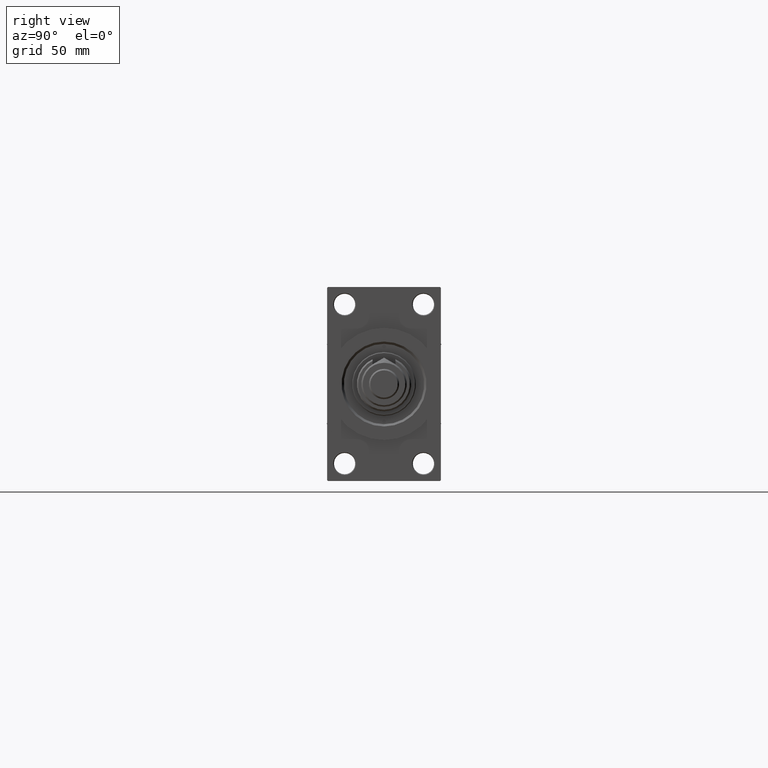
[diagram: clean part render]
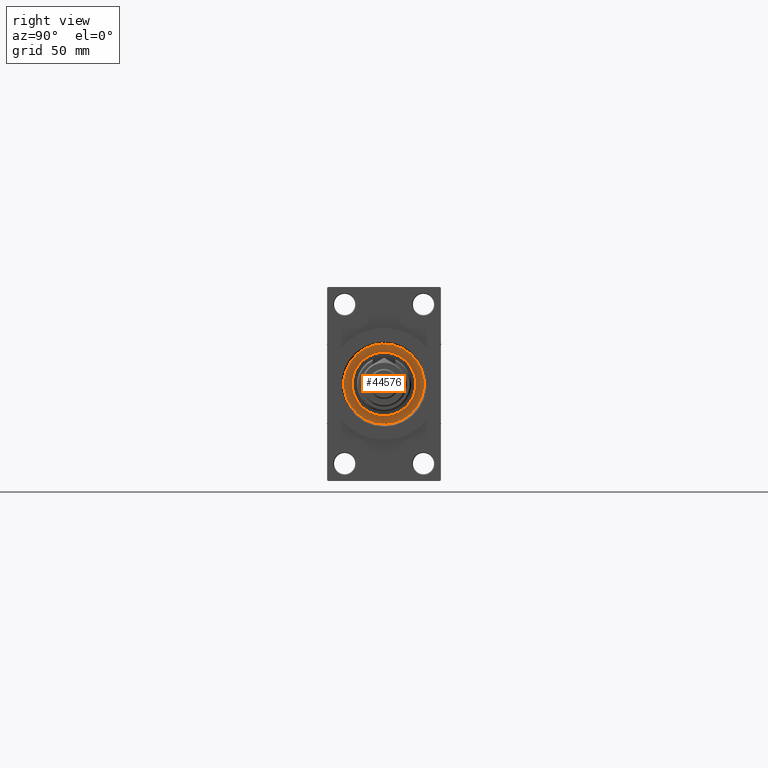
[diagram: same view with one face highlighted and labeled with its STEP entity id]
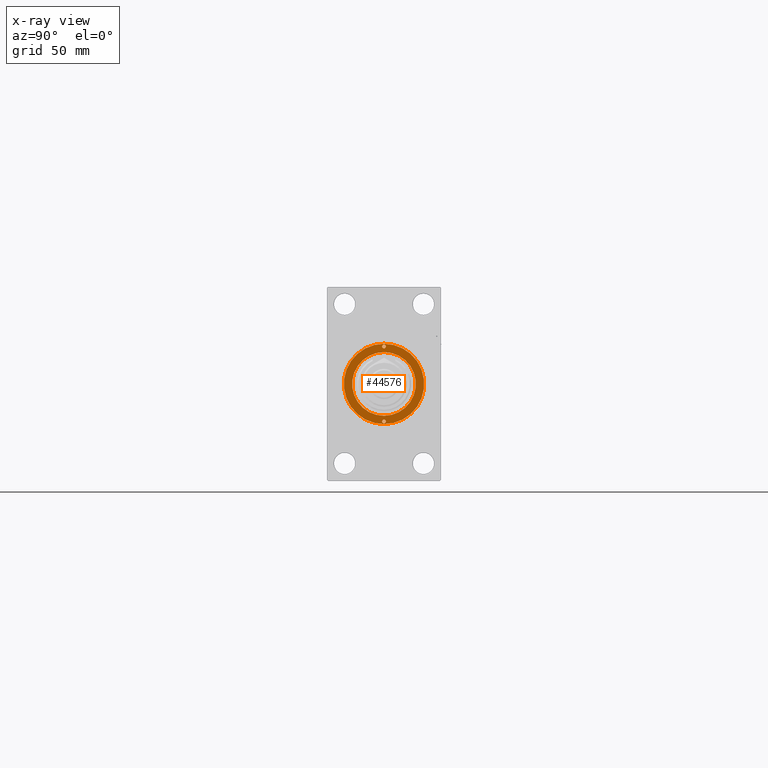
[diagram: x-ray of the same camera — body ghosted, the highlighted face saturated]
A machine part, right view. The second image highlights one B-rep face of the part: STEP entity #44576.
The next image is the same camera in x-ray: the body ghosted, the highlighted face saturated — about 0% of this face is hidden behind the body in this view.
In plain terms, the highlighted planar face has unit normal (1, -0, -0).
Its self-contained STEP definition (entity closure, byte-faithful):
#467 = DIRECTION ( 'NONE',  ( 0.000000000000000000, 0.000000000000000000, 1.000000000000000000 ) ) ;
#829 = AXIS2_PLACEMENT_3D ( 'NONE', #39328, #19762, #42128 ) ;
#956 = DIRECTION ( 'NONE',  ( 1.000000000000000000, 0.000000000000000000, 0.000000000000000000 ) ) ;
#2066 = CIRCLE ( 'NONE', #14196, 26.50000000000000355 ) ;
#2708 = CARTESIAN_POINT ( 'NONE',  ( 26.50000000000000355, 3.245314017740486554E-15, 43.25999999999999801 ) ) ;
#3404 = DIRECTION ( 'NONE',  ( 1.000000000000000000, 0.000000000000000000, 0.000000000000000000 ) ) ;
#4004 = EDGE_CURVE ( 'NONE', #41522, #43818, #18887, .T. ) ;
#4759 = CARTESIAN_POINT ( 'NONE',  ( 0.000000000000000000, 0.000000000000000000, 43.25999999999999801 ) ) ;
#4940 = CIRCLE ( 'NONE', #15500, 1.249999999999997558 ) ;
#5890 = AXIS2_PLACEMENT_3D ( 'NONE', #25679, #37361, #41422 ) ;
#7315 = CIRCLE ( 'NONE', #43871, 26.50000000000000355 ) ;
#8345 = ORIENTED_EDGE ( 'NONE', *, *, #31849, .T. ) ;
#9134 = CARTESIAN_POINT ( 'NONE',  ( 23.50000000000000355, 1.530808498934188612E-16, 43.25999999999999801 ) ) ;
#9213 = DIRECTION ( 'NONE',  ( 0.000000000000000000, 0.000000000000000000, 1.000000000000000000 ) ) ;
#9689 = CIRCLE ( 'NONE', #47061, 1.249999999999997558 ) ;
#10456 = VERTEX_POINT ( 'NONE', #23473 ) ;
#11386 = CARTESIAN_POINT ( 'NONE',  ( -21.00000000000000000, 0.000000000000000000, 43.25999999999999801 ) ) ;
#12216 = DIRECTION ( 'NONE',  ( -0.000000000000000000, -0.000000000000000000, 1.000000000000000000 ) ) ;
#12526 = CARTESIAN_POINT ( 'NONE',  ( -26.50000000000000355, 0.000000000000000000, 43.25999999999999801 ) ) ;
#13264 = ORIENTED_EDGE ( 'NONE', *, *, #4004, .F. ) ;
#13473 = EDGE_LOOP ( 'NONE', ( #22095, #8345 ) ) ;
#13589 = VERTEX_POINT ( 'NONE', #9134 ) ;
#13646 = VERTEX_POINT ( 'NONE', #44465 ) ;
#14196 = AXIS2_PLACEMENT_3D ( 'NONE', #4759, #467, #956 ) ;
#14434 = EDGE_CURVE ( 'NONE', #43818, #41522, #44668, .T. ) ;
#14843 = DIRECTION ( 'NONE',  ( 0.000000000000000000, 0.000000000000000000, 1.000000000000000000 ) ) ;
#15500 = AXIS2_PLACEMENT_3D ( 'NONE', #45732, #41395, #37098 ) ;
#16591 = FACE_OUTER_BOUND ( 'NONE', #13473, .T. ) ;
#17216 = CARTESIAN_POINT ( 'NONE',  ( 0.000000000000000000, 0.000000000000000000, 43.25999999999999801 ) ) ;
#18404 = EDGE_CURVE ( 'NONE', #47394, #41870, #7315, .T. ) ;
#18887 = CIRCLE ( 'NONE', #37568, 21.00000000000000000 ) ;
#19479 = DIRECTION ( 'NONE',  ( -0.000000000000000000, -0.000000000000000000, 1.000000000000000000 ) ) ;
#19762 = DIRECTION ( 'NONE',  ( 0.000000000000000000, 0.000000000000000000, 1.000000000000000000 ) ) ;
#20297 = DIRECTION ( 'NONE',  ( 1.000000000000000000, 0.000000000000000000, 0.000000000000000000 ) ) ;
#20856 = CARTESIAN_POINT ( 'NONE',  ( 24.75000000000000000, 0.000000000000000000, 43.25999999999999801 ) ) ;
#21154 = FACE_BOUND ( 'NONE', #21915, .T. ) ;
#21915 = EDGE_LOOP ( 'NONE', ( #47779, #13264 ) ) ;
#22095 = ORIENTED_EDGE ( 'NONE', *, *, #18404, .T. ) ;
#22600 = ORIENTED_EDGE ( 'NONE', *, *, #23695, .F. ) ;
#22981 = AXIS2_PLACEMENT_3D ( 'NONE', #20856, #12216, #35868 ) ;
#23473 = CARTESIAN_POINT ( 'NONE',  ( -23.50000000000000355, 0.000000000000000000, 43.25999999999999801 ) ) ;
#23534 = CARTESIAN_POINT ( 'NONE',  ( -24.75000000000000000, 0.000000000000000000, 43.25999999999999801 ) ) ;
#23695 = EDGE_CURVE ( 'NONE', #43216, #10456, #38355, .T. ) ;
#25679 = CARTESIAN_POINT ( 'NONE',  ( -24.75000000000000000, 0.000000000000000000, 43.25999999999999801 ) ) ;
#27058 = CARTESIAN_POINT ( 'NONE',  ( 0.000000000000000000, 0.000000000000000000, 43.25999999999999801 ) ) ;
#30321 = ORIENTED_EDGE ( 'NONE', *, *, #37171, .F. ) ;
#30669 = CARTESIAN_POINT ( 'NONE',  ( -26.00000000000000000, 1.530808498934188612E-16, 43.25999999999999801 ) ) ;
#31849 = EDGE_CURVE ( 'NONE', #41870, #47394, #2066, .T. ) ;
#32600 = AXIS2_PLACEMENT_3D ( 'NONE', #43793, #9213, #44545 ) ;
#33104 = FACE_BOUND ( 'NONE', #47080, .T. ) ;
#34980 = DIRECTION ( 'NONE',  ( 1.000000000000000000, 0.000000000000000000, 0.000000000000000000 ) ) ;
#35306 = CARTESIAN_POINT ( 'NONE',  ( 21.00000000000000000, 2.571758278209441661E-15, 43.25999999999999801 ) ) ;
#35868 = DIRECTION ( 'NONE',  ( 1.000000000000000000, 0.000000000000000000, 0.000000000000000000 ) ) ;
#36663 = PLANE ( 'NONE',  #32600 ) ;
#37098 = DIRECTION ( 'NONE',  ( 1.000000000000000000, 0.000000000000000000, 0.000000000000000000 ) ) ;
#37171 = EDGE_CURVE ( 'NONE', #10456, #43216, #9689, .T. ) ;
#37361 = DIRECTION ( 'NONE',  ( -0.000000000000000000, -0.000000000000000000, 1.000000000000000000 ) ) ;
#37568 = AXIS2_PLACEMENT_3D ( 'NONE', #27058, #14843, #3404 ) ;
#38355 = CIRCLE ( 'NONE', #5890, 1.249999999999997558 ) ;
#38694 = ORIENTED_EDGE ( 'NONE', *, *, #40491, .F. ) ;
#39328 = CARTESIAN_POINT ( 'NONE',  ( 0.000000000000000000, 0.000000000000000000, 43.25999999999999801 ) ) ;
#40112 = DIRECTION ( 'NONE',  ( 0.000000000000000000, 0.000000000000000000, 1.000000000000000000 ) ) ;
#40470 = FACE_BOUND ( 'NONE', #46837, .T. ) ;
#40491 = EDGE_CURVE ( 'NONE', #13646, #13589, #4940, .T. ) ;
#41395 = DIRECTION ( 'NONE',  ( -0.000000000000000000, -0.000000000000000000, 1.000000000000000000 ) ) ;
#41422 = DIRECTION ( 'NONE',  ( 1.000000000000000000, 0.000000000000000000, 0.000000000000000000 ) ) ;
#41522 = VERTEX_POINT ( 'NONE', #35306 ) ;
#41870 = VERTEX_POINT ( 'NONE', #2708 ) ;
#42128 = DIRECTION ( 'NONE',  ( 1.000000000000000000, 0.000000000000000000, 0.000000000000000000 ) ) ;
#43216 = VERTEX_POINT ( 'NONE', #30669 ) ;
#43793 = CARTESIAN_POINT ( 'NONE',  ( 0.000000000000000000, 0.000000000000000000, 43.25999999999999801 ) ) ;
#43818 = VERTEX_POINT ( 'NONE', #11386 ) ;
#43871 = AXIS2_PLACEMENT_3D ( 'NONE', #17216, #40112, #20297 ) ;
#44465 = CARTESIAN_POINT ( 'NONE',  ( 26.00000000000000000, 0.000000000000000000, 43.25999999999999801 ) ) ;
#44545 = DIRECTION ( 'NONE',  ( 1.000000000000000000, 0.000000000000000000, -0.000000000000000000 ) ) ;
#44576 = ADVANCED_FACE ( 'NONE', ( #33104, #40470, #21154, #16591 ), #36663, .T. ) ;
#44668 = CIRCLE ( 'NONE', #829, 21.00000000000000000 ) ;
#44905 = CIRCLE ( 'NONE', #22981, 1.249999999999997558 ) ;
#45732 = CARTESIAN_POINT ( 'NONE',  ( 24.75000000000000000, 0.000000000000000000, 43.25999999999999801 ) ) ;
#46837 = EDGE_LOOP ( 'NONE', ( #38694, #49524 ) ) ;
#47061 = AXIS2_PLACEMENT_3D ( 'NONE', #23534, #19479, #34980 ) ;
#47080 = EDGE_LOOP ( 'NONE', ( #30321, #22600 ) ) ;
#47394 = VERTEX_POINT ( 'NONE', #12526 ) ;
#47642 = EDGE_CURVE ( 'NONE', #13589, #13646, #44905, .T. ) ;
#47779 = ORIENTED_EDGE ( 'NONE', *, *, #14434, .F. ) ;
#49524 = ORIENTED_EDGE ( 'NONE', *, *, #47642, .F. ) ;